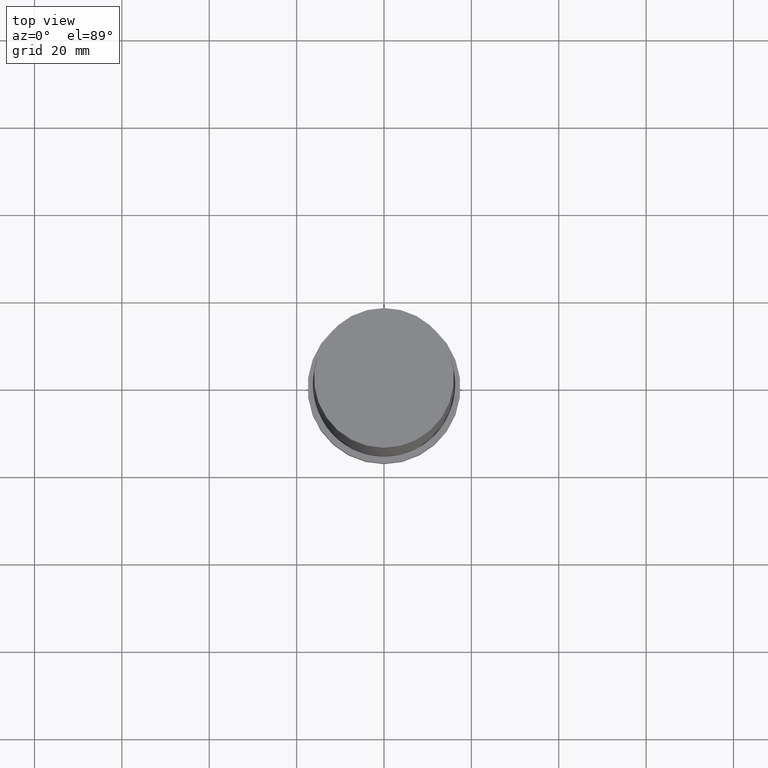
[diagram: clean part render]
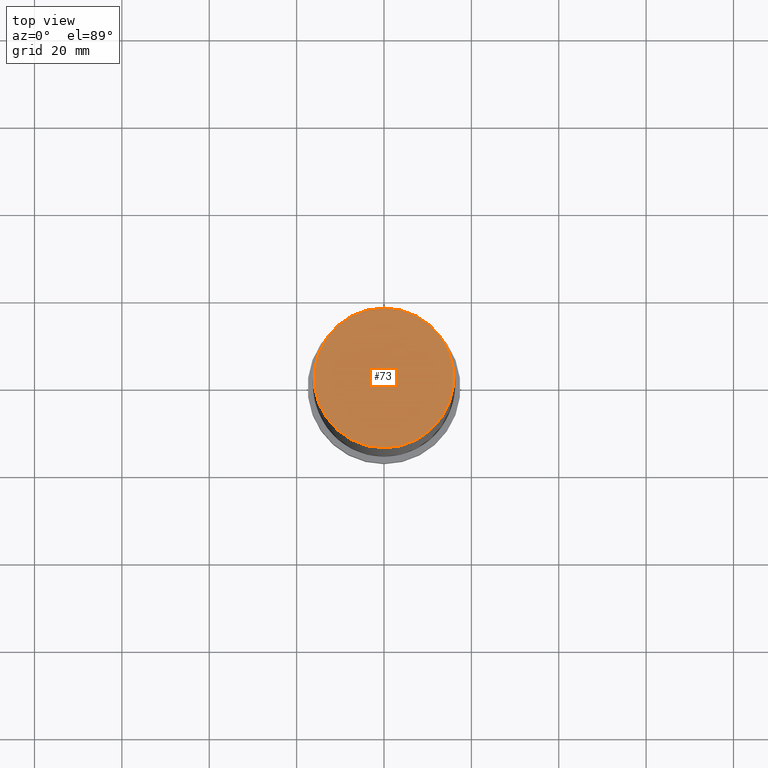
[diagram: same view with one face highlighted and labeled with its STEP entity id]
A machine part, top view. The second image highlights one B-rep face of the part: STEP entity #73.
In plain terms, the highlighted planar face has unit normal (-0, 0, 1).
Its self-contained STEP definition (entity closure, byte-faithful):
#66=EDGE_CURVE('Unnamed[1]',#162,#162,#163,.T.);
#73=ADVANCED_FACE('Unnamed[1]',(#172),#173,.T.);
#162=VERTEX_POINT('',#284);
#163=CIRCLE('',#285,16.0);
#172=FACE_OUTER_BOUND('',#297,.T.);
#173=PLANE('',#298);
#284=CARTESIAN_POINT('',(-9.7971743931788E-015,16.0000000000002,160.0));
#285=AXIS2_PLACEMENT_3D('',#419,#420,#421);
#297=EDGE_LOOP('',(#429));
#298=AXIS2_PLACEMENT_3D('',#430,#431,#432);
#419=CARTESIAN_POINT('',(-9.7971743931788E-015,2.1902293516426E-013,160.0));
#420=DIRECTION('',(6.12323399573677E-017,-1.36889334477661E-015,-1.0));
#421=DIRECTION('',(7.89933899219688E-032,1.0,-1.36889334477661E-015));
#429=ORIENTED_EDGE('',*,*,#66,.F.);
#430=CARTESIAN_POINT('',(-9.7971743931788E-015,8.0000000000002,160.0));
#431=DIRECTION('',(-6.12323399573677E-017,1.81018652890104E-015,1.0));
#432=DIRECTION('',(-1.06014804193147E-031,-1.0,1.81018652890104E-015));